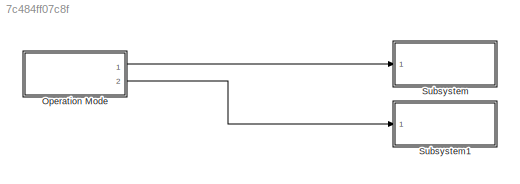
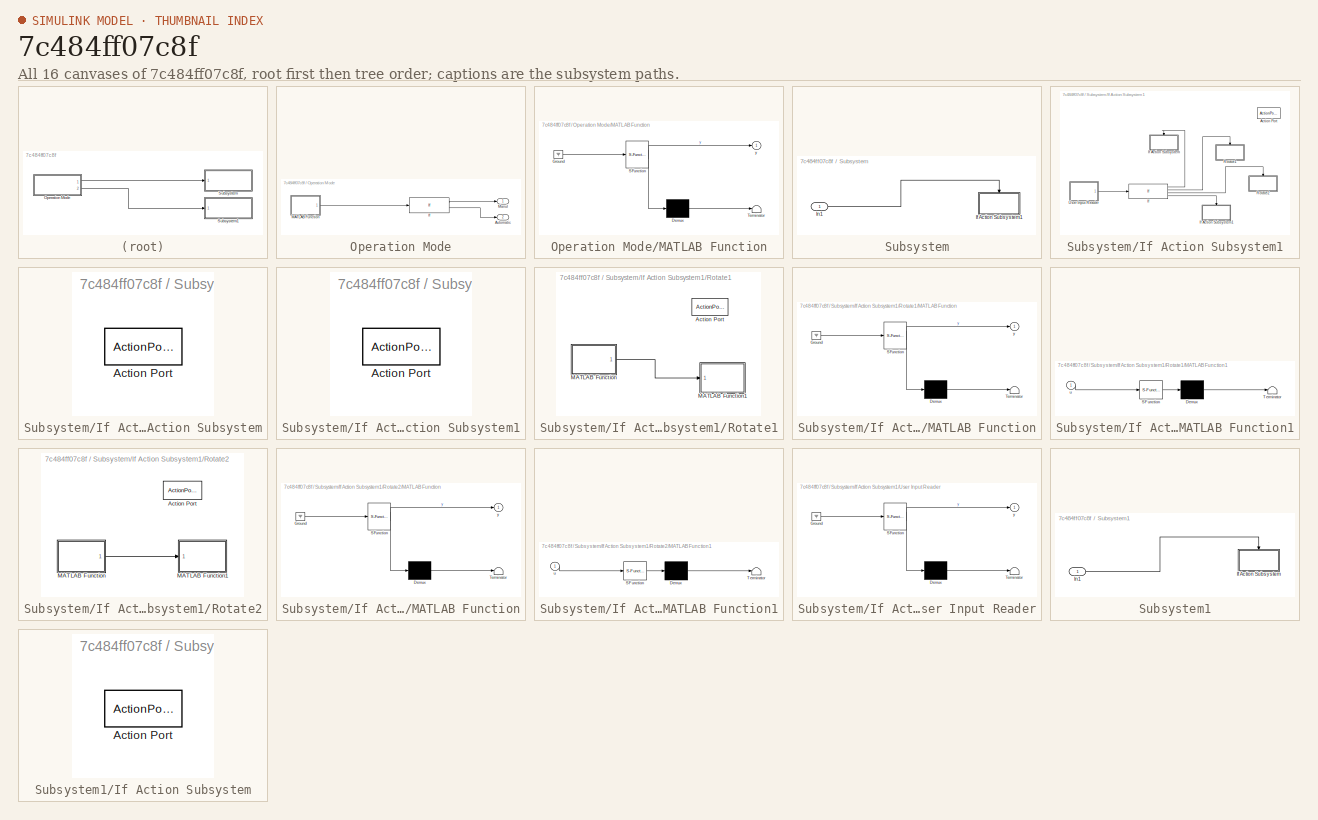
[diagram: thumbnail index - all 16 canvases of the model, root first then tree order]
MODEL slx_7c484ff07c8f
KIND model
CONFIG AbsTol = auto
CONFIG EnableMultiTasking = off
CONFIG FixedStep = 1
CONFIG MaxStep = auto
CONFIG MinStep = auto
CONFIG RelTol = 1e-3
CONFIG SampleTimeConstraint = Unconstrained
CONFIG Solver = FixedStepAuto
CONFIG SolverName = FixedStepAuto
CONFIG StartTime = 0.0
CONFIG StopTime = inf
BLOCK [SubSystem] Operation Mode
  Ports = [0, 2]
  RequestExecContextInheritance = off
BLOCK [Outport] Operation Mode/Automatic
  IconDisplay = Port number
  Port = 2
BLOCK [If] Operation Mode/If
  Ports = [1, 2]
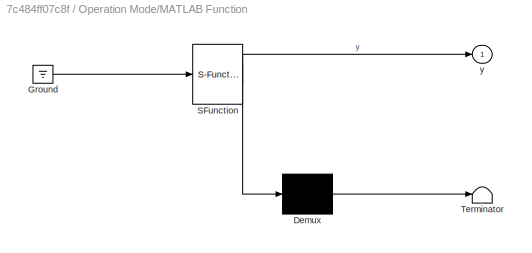
BLOCK [SubSystem] Operation Mode/MATLAB Function
  ErrorFcn = Stateflow.Translate.translate
  PermitHierarchicalResolution = ExplicitOnly
  Ports = [0, 1]
  RequestExecContextInheritance = off
  SFBlockType = MATLAB Function
  TreatAsAtomicUnit = on
BLOCK [Demux] Operation Mode/MATLAB Function/ Demux 
  Outputs = 1
  Ports = [1, 1]
BLOCK [Ground] Operation Mode/MATLAB Function/ Ground 
BLOCK [S-Function] Operation Mode/MATLAB Function/ SFunction 
  EnableBusSupport = on
  FunctionName = sf_sfun
  PortCounts = [1 2]
  Ports = [1, 2]
  SFcnIsStateOwnerBlock = off
  SFunctionDeploymentMode = off
  Tag = Stateflow S-Function demo 2
BLOCK [Terminator] Operation Mode/MATLAB Function/ Terminator 
BLOCK [Outport] Operation Mode/MATLAB Function/y
  IconDisplay = Port number
BLOCK [Outport] Operation Mode/Manul 
  IconDisplay = Port number
BLOCK [SubSystem] Subsystem
  Ports = [1]
  RequestExecContextInheritance = off
BLOCK [SubSystem] Subsystem/If Action Subsystem1
  Ports = [0, 0, 0, 0, 0, 0, 0, 1]
  RequestExecContextInheritance = off
  TreatAsAtomicUnit = on
BLOCK [ActionPort] Subsystem/If Action Subsystem1/Action Port
BLOCK [If] Subsystem/If Action Subsystem1/If
  ElseIfExpressions = u1 == 1, u1 == 2
  IfExpression = u1 == 0
  Ports = [1, 4]
BLOCK [SubSystem] Subsystem/If Action Subsystem1/If Action Subsystem
  Ports = [0, 0, 0, 0, 0, 0, 0, 1]
  RequestExecContextInheritance = off
  TreatAsAtomicUnit = on
BLOCK [ActionPort] Subsystem/If Action Subsystem1/If Action Subsystem/Action Port
BLOCK [SubSystem] Subsystem/If Action Subsystem1/If Action Subsystem1
  Ports = [0, 0, 0, 0, 0, 0, 0, 1]
  RequestExecContextInheritance = off
  TreatAsAtomicUnit = on
BLOCK [ActionPort] Subsystem/If Action Subsystem1/If Action Subsystem1/Action Port
BLOCK [SubSystem] Subsystem/If Action Subsystem1/Rotate1
  Ports = [0, 0, 0, 0, 0, 0, 0, 1]
  RequestExecContextInheritance = off
  TreatAsAtomicUnit = on
BLOCK [ActionPort] Subsystem/If Action Subsystem1/Rotate1/Action Port
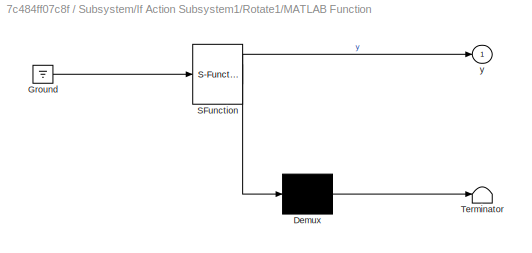
BLOCK [SubSystem] Subsystem/If Action Subsystem1/Rotate1/MATLAB Function
  ErrorFcn = Stateflow.Translate.translate
  PermitHierarchicalResolution = ExplicitOnly
  Ports = [0, 1]
  RequestExecContextInheritance = off
  SFBlockType = MATLAB Function
  TreatAsAtomicUnit = on
BLOCK [Demux] Subsystem/If Action Subsystem1/Rotate1/MATLAB Function/ Demux 
  Outputs = 1
  Ports = [1, 1]
BLOCK [Ground] Subsystem/If Action Subsystem1/Rotate1/MATLAB Function/ Ground 
BLOCK [S-Function] Subsystem/If Action Subsystem1/Rotate1/MATLAB Function/ SFunction 
  EnableBusSupport = on
  FunctionName = sf_sfun
  PortCounts = [1 2]
  Ports = [1, 2]
  SFcnIsStateOwnerBlock = off
  SFunctionDeploymentMode = off
  Tag = Stateflow S-Function demo 4
BLOCK [Terminator] Subsystem/If Action Subsystem1/Rotate1/MATLAB Function/ Terminator 
BLOCK [Outport] Subsystem/If Action Subsystem1/Rotate1/MATLAB Function/y
  IconDisplay = Port number
BLOCK [SubSystem] Subsystem/If Action Subsystem1/Rotate1/MATLAB Function1
  ErrorFcn = Stateflow.Translate.translate
  PermitHierarchicalResolution = ExplicitOnly
  Ports = [1]
  RequestExecContextInheritance = off
  SFBlockType = MATLAB Function
  TreatAsAtomicUnit = on
BLOCK [Demux] Subsystem/If Action Subsystem1/Rotate1/MATLAB Function1/ Demux 
  Outputs = 1
  Ports = [1, 1]
BLOCK [S-Function] Subsystem/If Action Subsystem1/Rotate1/MATLAB Function1/ SFunction 
  EnableBusSupport = on
  FunctionName = sf_sfun
  PortCounts = [1 1]
  Ports = [1, 1]
  SFcnIsStateOwnerBlock = off
  SFunctionDeploymentMode = off
  Tag = Stateflow S-Function demo 5
BLOCK [Terminator] Subsystem/If Action Subsystem1/Rotate1/MATLAB Function1/ Terminator 
BLOCK [Inport] Subsystem/If Action Subsystem1/Rotate1/MATLAB Function1/u
  IconDisplay = Port number
BLOCK [SubSystem] Subsystem/If Action Subsystem1/Rotate2
  Ports = [0, 0, 0, 0, 0, 0, 0, 1]
  RequestExecContextInheritance = off
  TreatAsAtomicUnit = on
BLOCK [ActionPort] Subsystem/If Action Subsystem1/Rotate2/Action Port
BLOCK [SubSystem] Subsystem/If Action Subsystem1/Rotate2/MATLAB Function
  ErrorFcn = Stateflow.Translate.translate
  PermitHierarchicalResolution = ExplicitOnly
  Ports = [0, 1]
  RequestExecContextInheritance = off
  SFBlockType = MATLAB Function
  TreatAsAtomicUnit = on
BLOCK [Demux] Subsystem/If Action Subsystem1/Rotate2/MATLAB Function/ Demux 
  Outputs = 1
  Ports = [1, 1]
BLOCK [Ground] Subsystem/If Action Subsystem1/Rotate2/MATLAB Function/ Ground 
BLOCK [S-Function] Subsystem/If Action Subsystem1/Rotate2/MATLAB Function/ SFunction 
  EnableBusSupport = on
  FunctionName = sf_sfun
  PortCounts = [1 2]
  Ports = [1, 2]
  SFcnIsStateOwnerBlock = off
  SFunctionDeploymentMode = off
  Tag = Stateflow S-Function demo 6
BLOCK [Terminator] Subsystem/If Action Subsystem1/Rotate2/MATLAB Function/ Terminator 
BLOCK [Outport] Subsystem/If Action Subsystem1/Rotate2/MATLAB Function/y
  IconDisplay = Port number
BLOCK [SubSystem] Subsystem/If Action Subsystem1/Rotate2/MATLAB Function1
  ErrorFcn = Stateflow.Translate.translate
  PermitHierarchicalResolution = ExplicitOnly
  Ports = [1]
  RequestExecContextInheritance = off
  SFBlockType = MATLAB Function
  TreatAsAtomicUnit = on
BLOCK [Demux] Subsystem/If Action Subsystem1/Rotate2/MATLAB Function1/ Demux 
  Outputs = 1
  Ports = [1, 1]
BLOCK [S-Function] Subsystem/If Action Subsystem1/Rotate2/MATLAB Function1/ SFunction 
  EnableBusSupport = on
  FunctionName = sf_sfun
  PortCounts = [1 1]
  Ports = [1, 1]
  SFcnIsStateOwnerBlock = off
  SFunctionDeploymentMode = off
  Tag = Stateflow S-Function demo 7
BLOCK [Terminator] Subsystem/If Action Subsystem1/Rotate2/MATLAB Function1/ Terminator 
BLOCK [Inport] Subsystem/If Action Subsystem1/Rotate2/MATLAB Function1/u
  IconDisplay = Port number
BLOCK [SubSystem] Subsystem/If Action Subsystem1/User Input Reader
  ErrorFcn = Stateflow.Translate.translate
  PermitHierarchicalResolution = ExplicitOnly
  Ports = [0, 1]
  RequestExecContextInheritance = off
  SFBlockType = MATLAB Function
  TreatAsAtomicUnit = on
BLOCK [Demux] Subsystem/If Action Subsystem1/User Input Reader/ Demux 
  Outputs = 1
  Ports = [1, 1]
BLOCK [Ground] Subsystem/If Action Subsystem1/User Input Reader/ Ground 
BLOCK [S-Function] Subsystem/If Action Subsystem1/User Input Reader/ SFunction 
  EnableBusSupport = on
  FunctionName = sf_sfun
  PortCounts = [1 2]
  Ports = [1, 2]
  SFcnIsStateOwnerBlock = off
  SFunctionDeploymentMode = off
  Tag = Stateflow S-Function demo 9
BLOCK [Terminator] Subsystem/If Action Subsystem1/User Input Reader/ Terminator 
BLOCK [Outport] Subsystem/If Action Subsystem1/User Input Reader/y
  IconDisplay = Port number
BLOCK [Inport] Subsystem/In1
  IconDisplay = Port number
BLOCK [SubSystem] Subsystem1
  Ports = [1]
  RequestExecContextInheritance = off
BLOCK [SubSystem] Subsystem1/If Action Subsystem
  Ports = [0, 0, 0, 0, 0, 0, 0, 1]
  RequestExecContextInheritance = off
  TreatAsAtomicUnit = on
BLOCK [ActionPort] Subsystem1/If Action Subsystem/Action Port
BLOCK [Inport] Subsystem1/In1
  IconDisplay = Port number
LINE Operation Mode/If:1 -> Operation Mode/Manul :1
LINE Operation Mode/If:2 -> Operation Mode/Automatic:1
LINE Operation Mode/MATLAB Function:1 -> Operation Mode/If:1
LINE Operation Mode:1 -> Subsystem:1
LINE Operation Mode:2 -> Subsystem1:1
LINE Subsystem/If Action Subsystem1/If:1 -> Subsystem/If Action Subsystem1/If Action Subsystem:ifaction
LINE Subsystem/If Action Subsystem1/If:2 -> Subsystem/If Action Subsystem1/Rotate1:ifaction
LINE Subsystem/If Action Subsystem1/If:3 -> Subsystem/If Action Subsystem1/Rotate2:ifaction
LINE Subsystem/If Action Subsystem1/If:4 -> Subsystem/If Action Subsystem1/If Action Subsystem1:ifaction
LINE Subsystem/If Action Subsystem1/Rotate1/MATLAB Function:1 -> Subsystem/If Action Subsystem1/Rotate1/MATLAB Function1:1
LINE Subsystem/If Action Subsystem1/Rotate2/MATLAB Function:1 -> Subsystem/If Action Subsystem1/Rotate2/MATLAB Function1:1
LINE Subsystem/If Action Subsystem1/User Input Reader:1 -> Subsystem/If Action Subsystem1/If:1
LINE Subsystem/In1:1 -> Subsystem/If Action Subsystem1:ifaction
LINE Subsystem1/In1:1 -> Subsystem1/If Action Subsystem:ifaction
CHART Operation Mode/MATLAB Function states=1 transitions=1
  STATE_LABEL 'eML_blk_kernel()'
  STATE_LABEL 'SCRIPT:\nfunction y = fcn()\ncoder.extrinsic("xlsread");\ny = 0;\n%coder.extrinsic(\'y\');\n\ny = xlsread("G2M_current.xls", \'A1:A1\');\n'
CHART Subsystem/If Action
Subsystem1/Rotate1/MATLAB Function states=1 transitions=1
  STATE_LABEL 'eML_blk_kernel()'
  STATE_LABEL 'SCRIPT:\n%function  fcn(u)\n\n%y = u;\nfunction y = fcn()\ncoder.extrinsic("system");\nsystem(\'bacwp.exe 701103 4 6 85 8 -1 9 1\');\npause(4);\nsystem(\'bacwp.exe 701103 4 6 85 8 -1 9 0\');\ny = 0\nend\n\n\n\n'
CHART Subsystem/If Action
Subsystem1/Rotate1/MATLAB Function1 states=1 transitions=1
  STATE_LABEL 'eML_blk_kernel()'
  STATE_LABEL 'SCRIPT:\n%function y = fcn(u)\n\n%y = u;\nfunction fcn(u)\ncoder.extrinsic("xlswrite");\nxlswrite(\'G2A_current.xls\',u,\'Sheet1\',\'A1\');\nend\n\n\n\n'
CHART Subsystem/If Action
Subsystem1/Rotate2/MATLAB Function states=1 transitions=1
  STATE_LABEL 'eML_blk_kernel()'
  STATE_LABEL 'SCRIPT:\n%function y = fcn(u)\n\n%y = u;\nfunction y = fcn()\ncoder.extrinsic("system");\n\nsystem(\'bacwp.exe 701103 4 7 85 8 -1 9 1\');\npause(4);\nsystem(\'bacwp.exe 701103 4 7 85 8 -1 9 0\');\ny = 0;\nend\n\n\n\n'
CHART Subsystem/If Action
Subsystem1/Rotate2/MATLAB Function1 states=1 transitions=1
  STATE_LABEL 'eML_blk_kernel()'
  STATE_LABEL 'SCRIPT:\n%function y = fcn(u)\n\n%y = u;\nfunction fcn(u)\ncoder.extrinsic("xlswrite");\nxlswrite(\'G2A_current.xls\',u,\'Sheet1\',\'A1\');\n\nend\n\n\n\n'
CHART Subsystem/If Action
Subsystem1/User Input Reader states=1 transitions=1
  STATE_LABEL 'eML_blk_kernel()'
  STATE_LABEL 'SCRIPT:\n function y = fcn()\ncoder.extrinsic("xlsread");\ny = 0;\n%coder.extrinsic(\'y\');\n\ny = xlsread("G2A_current.xls","A1:A1");\n'
